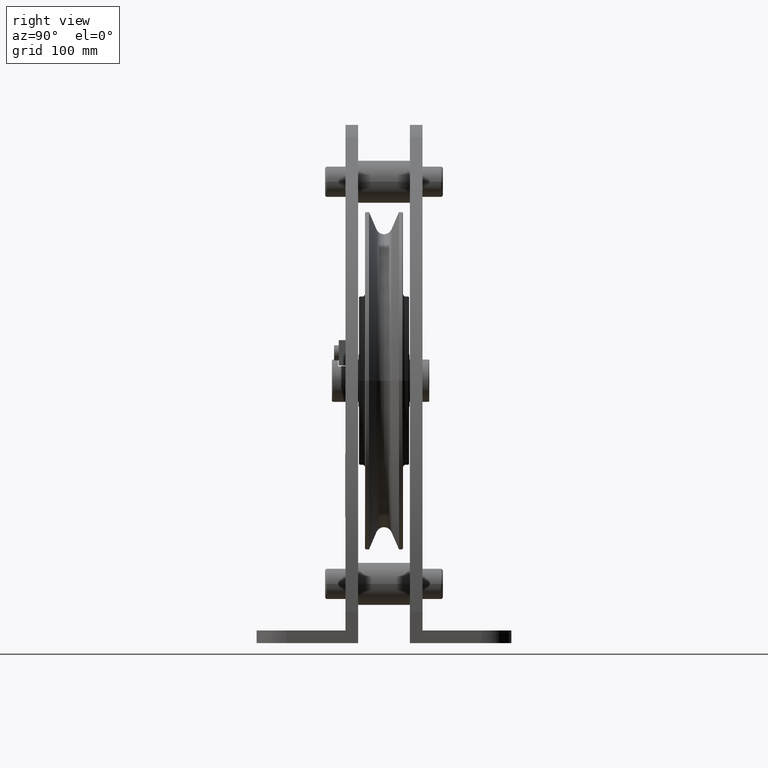
[diagram: clean part render]
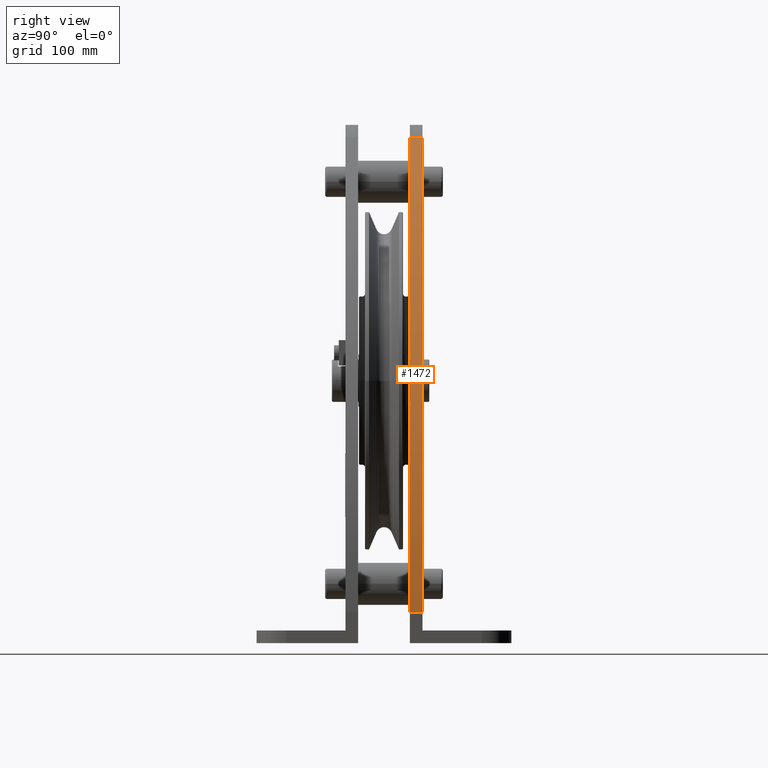
[diagram: same view with one face highlighted and labeled with its STEP entity id]
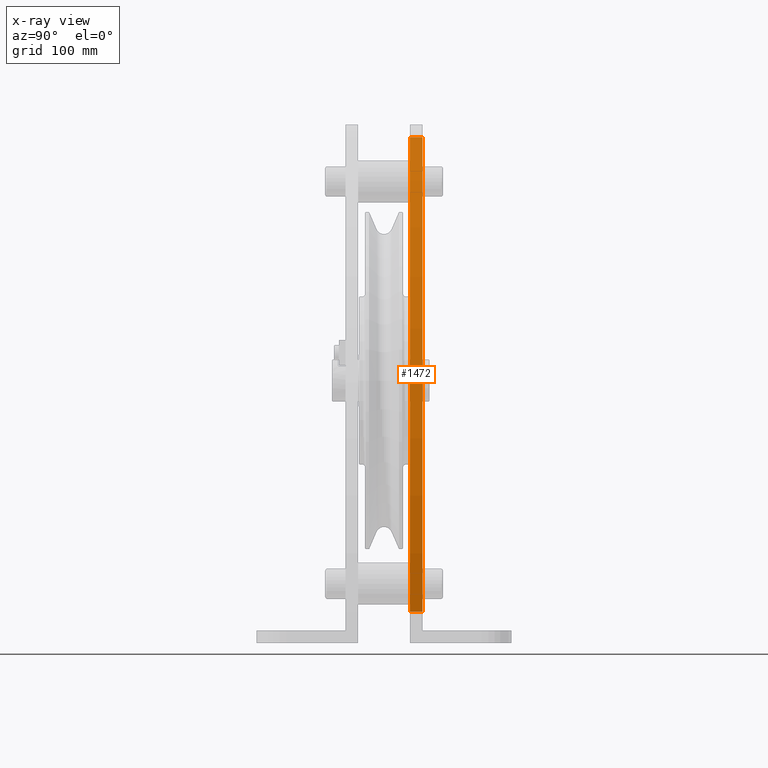
[diagram: x-ray of the same camera — body ghosted, the highlighted face saturated]
A machine part, right view. The second image highlights one B-rep face of the part: STEP entity #1472.
The next image is the same camera in x-ray: the body ghosted, the highlighted face saturated — about 0% of this face is hidden behind the body in this view.
In plain terms, the highlighted cylindrical surface (partial cylindrical patch) has radius 800 mm, axis along (-0, 1, 0).
Its self-contained STEP definition (entity closure, byte-faithful):
#1472=ADVANCED_FACE('',(#3217),#3218,.T.);
#3217=FACE_OUTER_BOUND('',#5249,.T.);
#3218=CYLINDRICAL_SURFACE('',#5250,799.999999964301);
#5249=EDGE_LOOP('',(#9891,#9892,#9893,#9894));
#5250=AXIS2_PLACEMENT_3D('',#9895,#9896,#9897);
#9891=ORIENTED_EDGE('',*,*,#13784,.T.);
#9892=ORIENTED_EDGE('',*,*,#13785,.F.);
#9893=ORIENTED_EDGE('',*,*,#13777,.T.);
#9894=ORIENTED_EDGE('',*,*,#13786,.T.);
#9895=CARTESIAN_POINT('',(-534.999999964302,30.5,-273.0655370879));
#9896=DIRECTION('',(-0.0,1.0,0.0));
#9897=DIRECTION('',(0.713333333324367,0.0,0.700824910778968));
#13777=EDGE_CURVE('',#17088,#17089,#17090,.T.);
#13784=EDGE_CURVE('',#17101,#17102,#17103,.T.);
#13785=EDGE_CURVE('',#17088,#17102,#17104,.T.);
#13786=EDGE_CURVE('',#17089,#17101,#17105,.T.);
#17088=VERTEX_POINT('',#24609);
#17089=VERTEX_POINT('',#24610);
#17090=CIRCLE('',#24611,799.999999964301);
#17101=VERTEX_POINT('',#24625);
#17102=VERTEX_POINT('',#24626);
#17103=CIRCLE('',#24627,799.999999964301);
#17104=LINE('',#24628,#24629);
#17105=LINE('',#24630,#24631);
#24609=CARTESIAN_POINT('',(35.6666666697264,30.5,287.594391510256));
#24610=CARTESIAN_POINT('',(265.0,30.5,-273.06553711024));
#24611=AXIS2_PLACEMENT_3D('',#28877,#28878,#28879);
#24625=CARTESIAN_POINT('',(265.0,45.5,-273.06553711024));
#24626=CARTESIAN_POINT('',(35.6666666697264,45.5,287.594391510256));
#24627=AXIS2_PLACEMENT_3D('',#28889,#28890,#28891);
#24628=CARTESIAN_POINT('',(35.6666666697264,30.5,287.594391510256));
#24629=VECTOR('',#28892,1.0);
#24630=CARTESIAN_POINT('',(265.0,30.5,-273.06553711024));
#24631=VECTOR('',#28893,1.0);
#28877=CARTESIAN_POINT('',(-534.999999964302,30.5,-273.0655370879));
#28878=DIRECTION('',(-0.0,1.0,0.0));
#28879=DIRECTION('',(0.713333333324367,0.0,0.700824910778968));
#28889=CARTESIAN_POINT('',(-534.999999964302,45.5,-273.0655370879));
#28890=DIRECTION('',(0.0,-1.0,0.0));
#28891=DIRECTION('',(0.713333333324367,0.0,0.700824910778968));
#28892=DIRECTION('',(0.0,1.0,0.0));
#28893=DIRECTION('',(0.0,1.0,0.0));